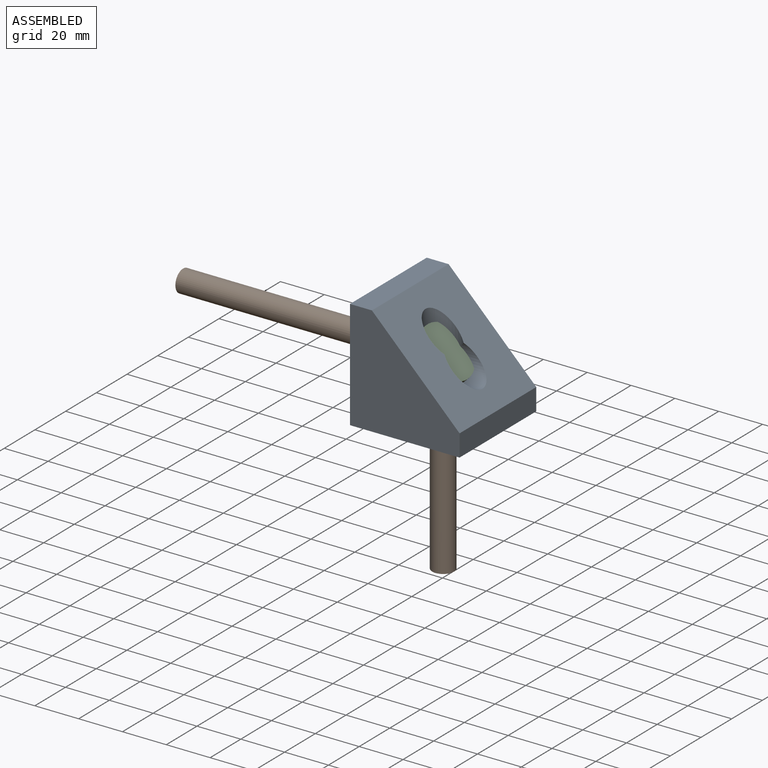
[diagram: assembled view]
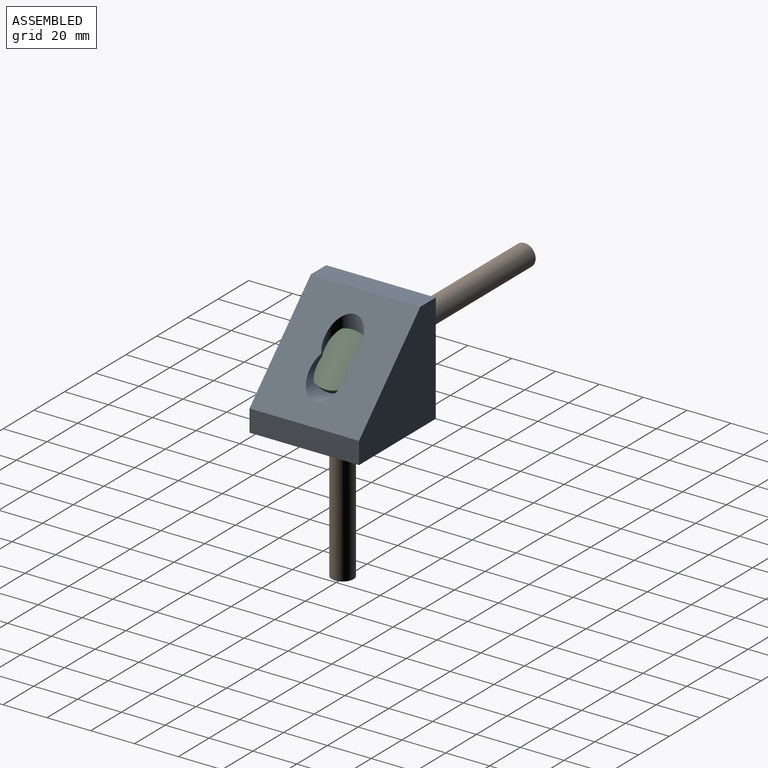
[diagram: assembled view, second angle]
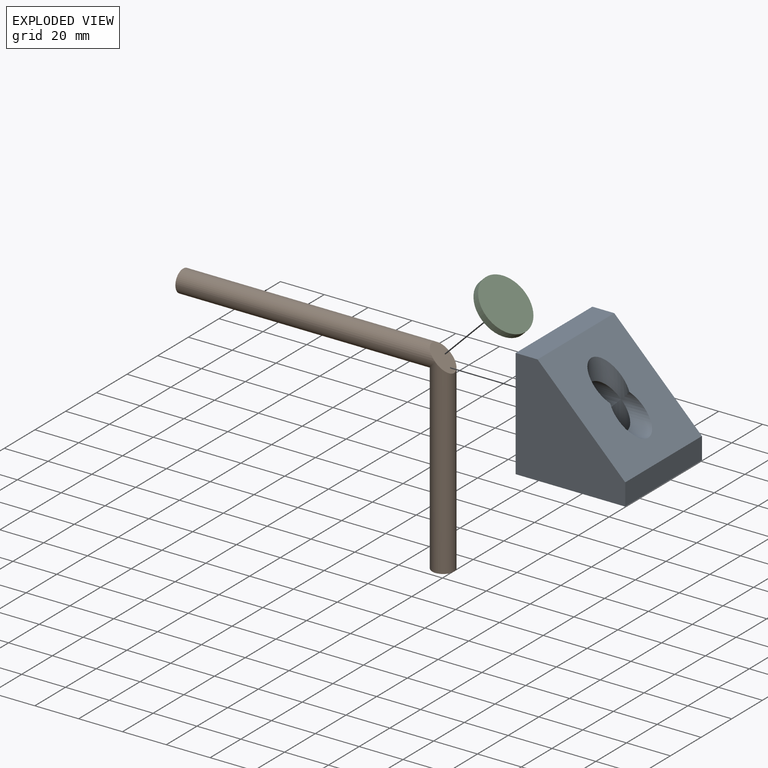
[diagram: exploded view]
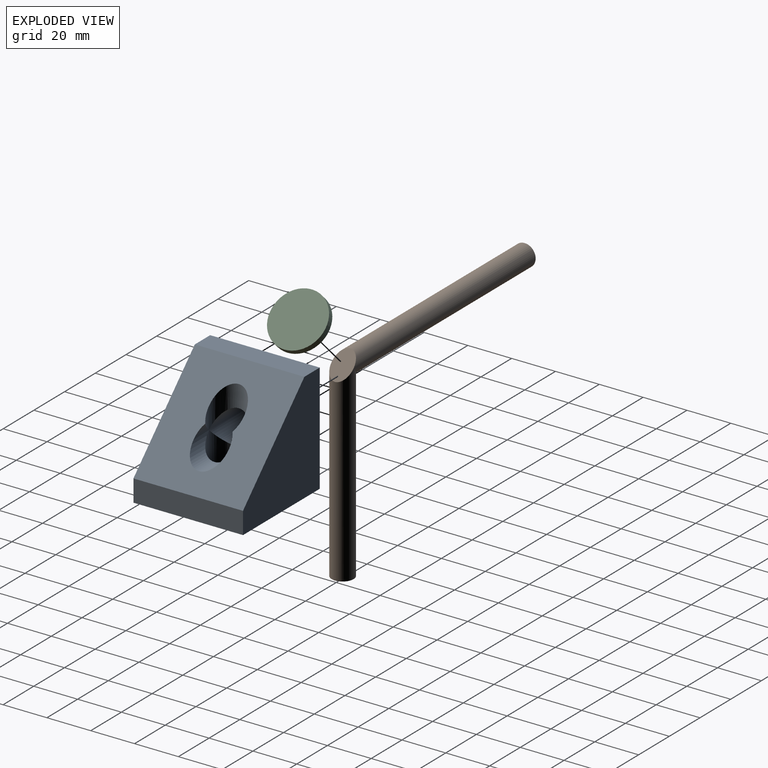
[diagram: exploded view, second angle]
ASSEMBLY  parts=3 mates=2
PART A: 11 faces, bbox 50x50x50 mm
  f0: plane 50x10mm, normal (1,0,0), area 500mm2, adj f5,f7,f8,f10
  f1: cylinder r=8mm len=18.06mm, axis (-1,0,0), area 303.2mm2, adj f2,f3,f10
  f2: cylinder r=8mm len=18.06mm, axis (0,0,-1), area 303.2mm2, adj f1,f9,f10
  f3: cylinder r=8mm len=25mm, axis (0,0,-1), area 1000.6mm2, adj f1,f5,f9
  f4: plane 50x50mm, normal (-1,0,0), area 2298.9mm2, adj f5,f6,f7,f8,f9
  f5: plane 50x50mm, normal (0,0,-1), area 2298.9mm2, adj f0,f3,f4,f7,f8
  f6: plane 50x10mm, normal (0,0,1), area 500mm2, adj f4,f7,f8,f10
  f7: plane 50x50mm, normal (0,-1,0), area 1700mm2, adj f0,f4,f5,f6,f10
  f8: plane 50x50mm, normal (0,1,0), area 1700mm2, adj f0,f4,f5,f6,f10
  f9: cylinder r=8mm len=25mm, axis (-1,0,0), area 1000.6mm2, adj f2,f3,f4
  f10: plane 50x40mm, normal (0.71,0,0.71), area 2333.6mm2, adj f0,f1,f2,f6,f7,f8
PART B: 5 faces, bbox 10x91.9x123.7 mm
  f0: plane 10x10mm, normal (0,0,-1), area 78.5mm2, adj f3
  f1: plane 10x10mm, normal (0,-1,0), area 78.5mm2, adj f2
  f2: cylinder r=5mm len=89.38mm, axis (0,1,0), area 2631mm2, adj f1,f3,f4
  f3: cylinder r=5mm len=121.13mm, axis (0,0,-1), area 3628.6mm2, adj f0,f2,f4
  f4: plane 10.01x10.01mm, normal (0,0.71,0.71), area 111.3mm2, adj f2,f3
PART C: 3 faces, bbox 25.4x3x25.4 mm
  f0: cylinder r=12.7mm len=25.4mm, axis (0,1,0), area 239.4mm2, adj f1,f2
  f1: plane 25.4x25.4mm, normal (0,-1,0), area 506.7mm2, adj f0
  f2: plane 25.4x25.4mm, normal (0,1,0), area 506.7mm2, adj f0
PLACE A t=(13.84,27.1,43.97)mm
PLACE B rot(axis=(0.58,0.58,0.58),120deg) t=(20.15,-21.61,99.23)mm
PLACE C rot(axis=(0.36,-0.36,-0.86),98.4deg) t=(57.41,11.45,55.47)mm
MATE parallel C.f0 <-> A.f10  axis (-0.71,0,-0.71) through (38.74,1.89,69.89)mm
MATE slider B.f3 <-> A.f1  axis (-1,0,0) through (-18.92,2.1,68.97)mm
